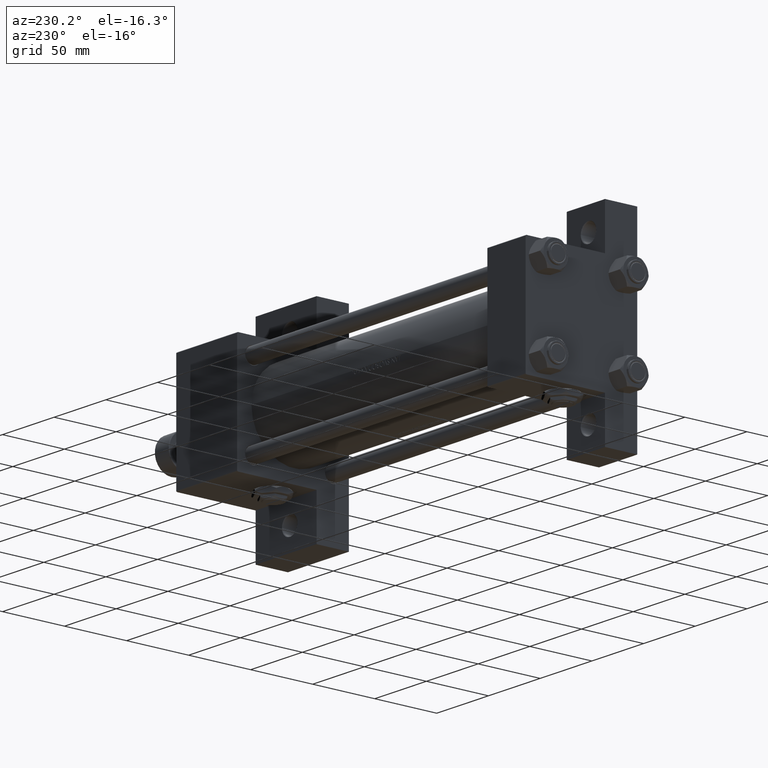
[diagram: clean part render]
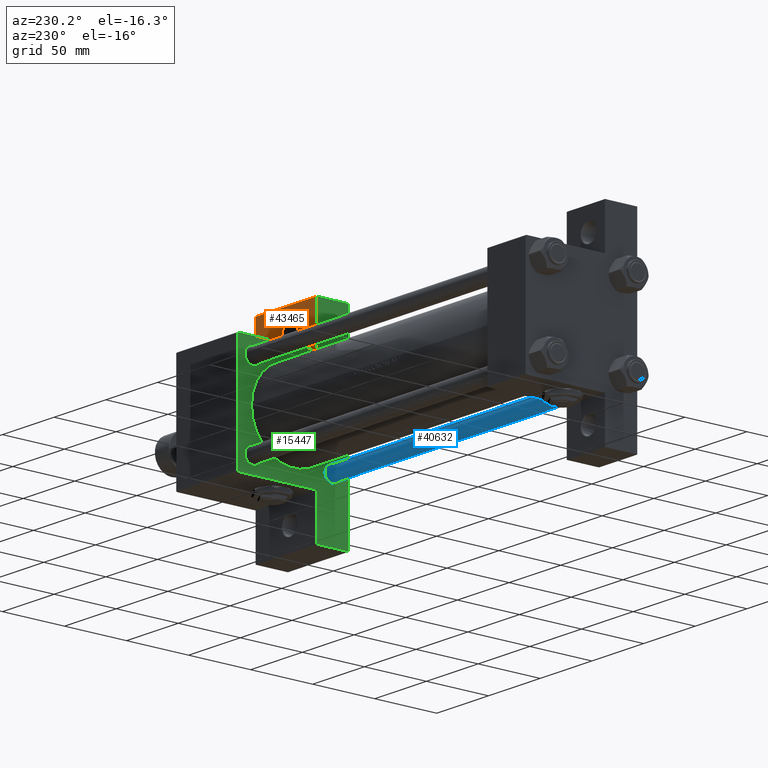
[diagram: same view with three faces highlighted in distinct colors, each labeled with its STEP entity id]
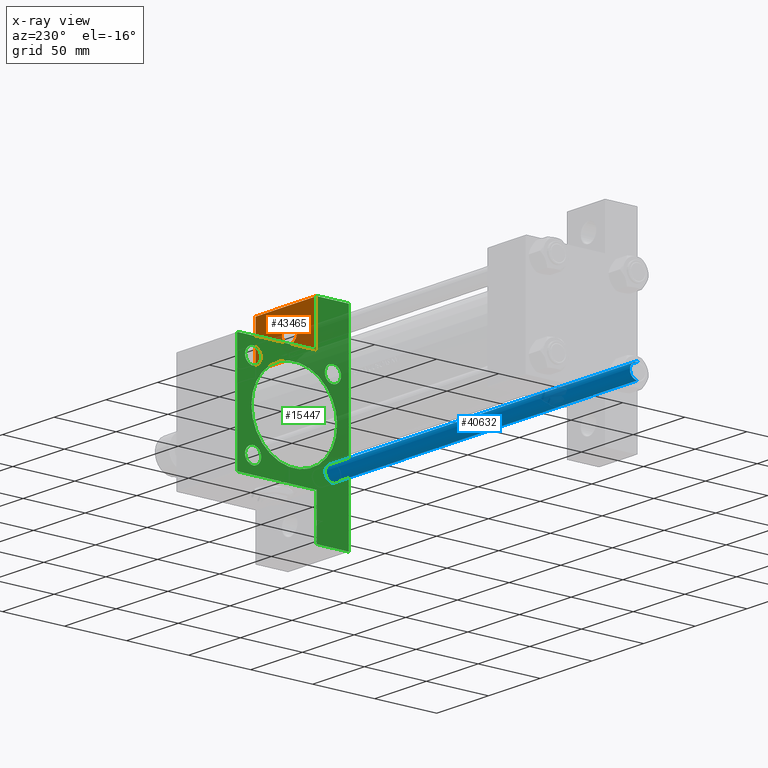
[diagram: x-ray of the same camera — body ghosted, the three highlighted faces saturated]
A machine part, auxiliary view with three faces highlighted in distinct colors.
The next image is the same camera in x-ray (body ghosted, the three faces saturated) — at least one of them is partly hidden behind the body in this view.
Their STEP definitions:

[orange] entity #43465 — the highlighted planar face has unit normal (0, -1, 0).
#242 = ORIENTED_EDGE ( 'NONE', *, *, #17396, .F. ) ;
#1238 = DIRECTION ( 'NONE',  ( -1.000000000000000000, 4.704334850106595794E-16, -0.000000000000000000 ) ) ;
#2348 = VECTOR ( 'NONE', #14859, 1000.000000000000000 ) ;
#3021 = CIRCLE ( 'NONE', #17595, 7.499499999999992284 ) ;
#3082 = CIRCLE ( 'NONE', #37907, 7.499499999999992284 ) ;
#3335 = LINE ( 'NONE', #3585, #25775 ) ;
#3585 = CARTESIAN_POINT ( 'NONE',  ( 278.9999999999999432, -80.00000000000001421, -19.00000000000000000 ) ) ;
#4036 = DIRECTION ( 'NONE',  ( -1.000000000000000000, 0.000000000000000000, 0.000000000000000000 ) ) ;
#5080 = VERTEX_POINT ( 'NONE', #6780 ) ;
#5293 = CARTESIAN_POINT ( 'NONE',  ( 337.9999999999999432, -80.00000000000004263, -19.00000000000000000 ) ) ;
#6780 = CARTESIAN_POINT ( 'NONE',  ( 278.9999999999999432, -80.00000000000001421, -19.00000000000000000 ) ) ;
#7097 = CARTESIAN_POINT ( 'NONE',  ( 337.9999999999999432, -80.00000000000004263, -19.00000000000000000 ) ) ;
#7888 = AXIS2_PLACEMENT_3D ( 'NONE', #49861, #30873, #30377 ) ;
#9575 = EDGE_CURVE ( 'NONE', #5080, #49798, #3335, .T. ) ;
#10508 = CARTESIAN_POINT ( 'NONE',  ( 312.4994999999999550, -62.00000000000000000, -19.00000000000000000 ) ) ;
#11410 = EDGE_CURVE ( 'NONE', #46560, #15651, #3082, .T. ) ;
#14859 = DIRECTION ( 'NONE',  ( 1.000000000000000000, 0.000000000000000000, 0.000000000000000000 ) ) ;
#15113 = LINE ( 'NONE', #49053, #2348 ) ;
#15651 = VERTEX_POINT ( 'NONE', #22961 ) ;
#17229 = LINE ( 'NONE', #5293, #45596 ) ;
#17396 = EDGE_CURVE ( 'NONE', #28220, #5080, #24115, .T. ) ;
#17595 = AXIS2_PLACEMENT_3D ( 'NONE', #22341, #38788, #4036 ) ;
#20049 = ORIENTED_EDGE ( 'NONE', *, *, #30858, .F. ) ;
#21168 = CARTESIAN_POINT ( 'NONE',  ( 337.9999999999999432, -44.99999999999999289, -18.99999999999997513 ) ) ;
#22341 = CARTESIAN_POINT ( 'NONE',  ( 304.9999999999999432, -62.00000000000000000, -19.00000000000000000 ) ) ;
#22961 = CARTESIAN_POINT ( 'NONE',  ( 297.5004999999999313, -62.00000000000000000, -19.00000000000000000 ) ) ;
#24047 = DIRECTION ( 'NONE',  ( -1.000000000000000000, 0.000000000000000000, 0.000000000000000000 ) ) ;
#24115 = LINE ( 'NONE', #47128, #34407 ) ;
#25100 = DIRECTION ( 'NONE',  ( -0.000000000000000000, -1.000000000000000000, -0.000000000000000000 ) ) ;
#25775 = VECTOR ( 'NONE', #30487, 1000.000000000000000 ) ;
#28079 = DIRECTION ( 'NONE',  ( 0.000000000000000000, 0.000000000000000000, -1.000000000000000000 ) ) ;
#28220 = VERTEX_POINT ( 'NONE', #7097 ) ;
#30377 = DIRECTION ( 'NONE',  ( -1.000000000000000000, 0.000000000000000000, -0.000000000000000000 ) ) ;
#30487 = DIRECTION ( 'NONE',  ( 0.000000000000000000, 1.000000000000000000, 0.000000000000000000 ) ) ;
#30858 = EDGE_CURVE ( 'NONE', #40040, #28220, #17229, .T. ) ;
#30873 = DIRECTION ( 'NONE',  ( 0.000000000000000000, 0.000000000000000000, -1.000000000000000000 ) ) ;
#31475 = ORIENTED_EDGE ( 'NONE', *, *, #9575, .F. ) ;
#32440 = FACE_OUTER_BOUND ( 'NONE', #44095, .T. ) ;
#34407 = VECTOR ( 'NONE', #1238, 1000.000000000000000 ) ;
#35169 = CARTESIAN_POINT ( 'NONE',  ( 304.9999999999999432, -62.00000000000000000, -19.00000000000000000 ) ) ;
#35365 = ORIENTED_EDGE ( 'NONE', *, *, #44762, .F. ) ;
#37463 = FACE_BOUND ( 'NONE', #45817, .T. ) ;
#37592 = ORIENTED_EDGE ( 'NONE', *, *, #43273, .T. ) ;
#37907 = AXIS2_PLACEMENT_3D ( 'NONE', #35169, #28079, #24047 ) ;
#38788 = DIRECTION ( 'NONE',  ( 0.000000000000000000, 0.000000000000000000, -1.000000000000000000 ) ) ;
#39217 = CARTESIAN_POINT ( 'NONE',  ( 278.9999999999999432, -45.00000000000000000, -19.00000000000000000 ) ) ;
#40040 = VERTEX_POINT ( 'NONE', #21168 ) ;
#43273 = EDGE_CURVE ( 'NONE', #15651, #46560, #3021, .T. ) ;
#43465 = ADVANCED_FACE ( 'NONE', ( #37463, #32440 ), #47872, .F. ) ;
#44095 = EDGE_LOOP ( 'NONE', ( #20049, #35365, #31475, #242 ) ) ;
#44762 = EDGE_CURVE ( 'NONE', #49798, #40040, #15113, .T. ) ;
#45596 = VECTOR ( 'NONE', #25100, 1000.000000000000000 ) ;
#45817 = EDGE_LOOP ( 'NONE', ( #48974, #37592 ) ) ;
#46560 = VERTEX_POINT ( 'NONE', #10508 ) ;
#47128 = CARTESIAN_POINT ( 'NONE',  ( 278.9999999999999432, -80.00000000000001421, -19.00000000000000000 ) ) ;
#47872 = PLANE ( 'NONE',  #7888 ) ;
#48974 = ORIENTED_EDGE ( 'NONE', *, *, #11410, .T. ) ;
#49053 = CARTESIAN_POINT ( 'NONE',  ( 278.9999999999999432, -45.00000000000000000, -19.00000000000000000 ) ) ;
#49798 = VERTEX_POINT ( 'NONE', #39217 ) ;
#49861 = CARTESIAN_POINT ( 'NONE',  ( 0.000000000000000000, 0.000000000000000000, -19.00000000000000000 ) ) ;

[blue] entity #40632 — the highlighted cylindrical surface (edge-blend (fillet) strip) has radius 6 mm, axis along (-1, 0, 0).
#502 = AXIS2_PLACEMENT_3D ( 'NONE', #16013, #20815, #28175 ) ;
#1022 = CYLINDRICAL_SURFACE ( 'NONE', #502, 6.000000000000000888 ) ;
#4171 = EDGE_LOOP ( 'NONE', ( #36205, #17264, #22654, #22579 ) ) ;
#5885 = CARTESIAN_POINT ( 'NONE',  ( 6.000000000000000888, 7.347880794884120722E-16, 307.4999999999999432 ) ) ;
#6802 = CARTESIAN_POINT ( 'NONE',  ( -6.000000000000000888, 0.000000000000000000, 0.5000000000000559552 ) ) ;
#7782 = CARTESIAN_POINT ( 'NONE',  ( -6.000000000000000888, 0.000000000000000000, 307.4999999999999432 ) ) ;
#8499 = CARTESIAN_POINT ( 'NONE',  ( 6.000000000000000888, 7.347880794884120722E-16, 0.5000000000000559552 ) ) ;
#9948 = CARTESIAN_POINT ( 'NONE',  ( 0.000000000000000000, 0.000000000000000000, 307.4999999999999432 ) ) ;
#10581 = CIRCLE ( 'NONE', #13818, 6.000000000000000888 ) ;
#13378 = DIRECTION ( 'NONE',  ( 1.000000000000000000, 0.000000000000000000, 0.000000000000000000 ) ) ;
#13818 = AXIS2_PLACEMENT_3D ( 'NONE', #24569, #24080, #13378 ) ;
#16013 = CARTESIAN_POINT ( 'NONE',  ( 0.000000000000000000, 0.000000000000000000, 308.0000000000000000 ) ) ;
#17264 = ORIENTED_EDGE ( 'NONE', *, *, #21602, .T. ) ;
#17444 = LINE ( 'NONE', #33148, #24475 ) ;
#20815 = DIRECTION ( 'NONE',  ( -0.000000000000000000, -0.000000000000000000, -1.000000000000000000 ) ) ;
#21602 = EDGE_CURVE ( 'NONE', #35752, #36715, #29906, .T. ) ;
#21620 = DIRECTION ( 'NONE',  ( 1.000000000000000000, 0.000000000000000000, 0.000000000000000000 ) ) ;
#21694 = CARTESIAN_POINT ( 'NONE',  ( -6.000000000000000888, 0.000000000000000000, 308.0000000000000000 ) ) ;
#22579 = ORIENTED_EDGE ( 'NONE', *, *, #48730, .T. ) ;
#22654 = ORIENTED_EDGE ( 'NONE', *, *, #27234, .T. ) ;
#24080 = DIRECTION ( 'NONE',  ( -0.000000000000000000, -0.000000000000000000, 1.000000000000000000 ) ) ;
#24475 = VECTOR ( 'NONE', #48588, 1000.000000000000000 ) ;
#24569 = CARTESIAN_POINT ( 'NONE',  ( 0.000000000000000000, 0.000000000000000000, 0.5000000000000559552 ) ) ;
#24782 = VERTEX_POINT ( 'NONE', #8499 ) ;
#25202 = VERTEX_POINT ( 'NONE', #6802 ) ;
#26872 = EDGE_CURVE ( 'NONE', #35752, #24782, #17444, .T. ) ;
#27234 = EDGE_CURVE ( 'NONE', #36715, #25202, #37380, .T. ) ;
#28175 = DIRECTION ( 'NONE',  ( -1.000000000000000000, 0.000000000000000000, 0.000000000000000000 ) ) ;
#29287 = DIRECTION ( 'NONE',  ( -0.000000000000000000, -0.000000000000000000, -1.000000000000000000 ) ) ;
#29460 = DIRECTION ( 'NONE',  ( 0.000000000000000000, 0.000000000000000000, -1.000000000000000000 ) ) ;
#29906 = CIRCLE ( 'NONE', #32342, 6.000000000000000888 ) ;
#32342 = AXIS2_PLACEMENT_3D ( 'NONE', #9948, #29460, #21620 ) ;
#33148 = CARTESIAN_POINT ( 'NONE',  ( 6.000000000000000888, 7.347880794884120722E-16, 308.0000000000000000 ) ) ;
#35752 = VERTEX_POINT ( 'NONE', #5885 ) ;
#36205 = ORIENTED_EDGE ( 'NONE', *, *, #26872, .F. ) ;
#36715 = VERTEX_POINT ( 'NONE', #7782 ) ;
#37380 = LINE ( 'NONE', #21694, #39874 ) ;
#39874 = VECTOR ( 'NONE', #29287, 1000.000000000000000 ) ;
#40632 = ADVANCED_FACE ( 'NONE', ( #43861 ), #1022, .T. ) ;
#43861 = FACE_OUTER_BOUND ( 'NONE', #4171, .T. ) ;
#48588 = DIRECTION ( 'NONE',  ( -0.000000000000000000, -0.000000000000000000, -1.000000000000000000 ) ) ;
#48730 = EDGE_CURVE ( 'NONE', #25202, #24782, #10581, .T. ) ;

[green] entity #15447 — the highlighted planar face has unit normal (-1, 0, -0).
#18 = CARTESIAN_POINT ( 'NONE',  ( 278.9999999999999432, 32.14999999999999147, 32.15000000000000568 ) ) ;
#31 = EDGE_CURVE ( 'NONE', #37149, #39173, #8538, .T. ) ;
#59 = ORIENTED_EDGE ( 'NONE', *, *, #9575, .T. ) ;
#82 = EDGE_LOOP ( 'NONE', ( #49854, #7340, #7660, #45256, #6044, #5572, #27597, #59, #983, #11728 ) ) ;
#206 = LINE ( 'NONE', #7828, #16746 ) ;
#420 = EDGE_LOOP ( 'NONE', ( #15382, #12728 ) ) ;
#516 = EDGE_CURVE ( 'NONE', #24893, #8527, #36863, .T. ) ;
#921 = EDGE_LOOP ( 'NONE', ( #42634, #7470 ) ) ;
#983 = ORIENTED_EDGE ( 'NONE', *, *, #41689, .F. ) ;
#1319 = CARTESIAN_POINT ( 'NONE',  ( 278.9999999999999432, -32.14999999999997726, 38.65000000000002700 ) ) ;
#2380 = AXIS2_PLACEMENT_3D ( 'NONE', #5114, #24678, #44158 ) ;
#3335 = LINE ( 'NONE', #3585, #25775 ) ;
#3475 = CARTESIAN_POINT ( 'NONE',  ( 278.9999999999999432, 32.14999999999999147, 38.65000000000001279 ) ) ;
#3585 = CARTESIAN_POINT ( 'NONE',  ( 278.9999999999999432, -80.00000000000001421, -19.00000000000000000 ) ) ;
#3979 = CIRCLE ( 'NONE', #2380, 6.500000000000012434 ) ;
#4102 = DIRECTION ( 'NONE',  ( 0.000000000000000000, 0.000000000000000000, -1.000000000000000000 ) ) ;
#4130 = VERTEX_POINT ( 'NONE', #48355 ) ;
#4577 = CARTESIAN_POINT ( 'NONE',  ( 278.9999999999999432, -45.00000000000000000, 44.49999999999998579 ) ) ;
#4932 = DIRECTION ( 'NONE',  ( 0.000000000000000000, 0.000000000000000000, -1.000000000000000000 ) ) ;
#5018 = EDGE_CURVE ( 'NONE', #47265, #4130, #15054, .T. ) ;
#5080 = VERTEX_POINT ( 'NONE', #6780 ) ;
#5114 = CARTESIAN_POINT ( 'NONE',  ( 278.9999999999999432, -32.14999999999997726, -32.15000000000001279 ) ) ;
#5572 = ORIENTED_EDGE ( 'NONE', *, *, #46227, .T. ) ;
#6044 = ORIENTED_EDGE ( 'NONE', *, *, #18786, .T. ) ;
#6131 = CARTESIAN_POINT ( 'NONE',  ( 278.9999999999999432, 45.00000000000001421, 44.49999999999994316 ) ) ;
#6512 = VECTOR ( 'NONE', #27104, 1000.000000000000000 ) ;
#6751 = CARTESIAN_POINT ( 'NONE',  ( 278.9999999999999432, 45.00000000000001421, -45.00000000000000000 ) ) ;
#6780 = CARTESIAN_POINT ( 'NONE',  ( 278.9999999999999432, -80.00000000000001421, -19.00000000000000000 ) ) ;
#7135 = EDGE_CURVE ( 'NONE', #49877, #34776, #22908, .T. ) ;
#7241 = VECTOR ( 'NONE', #4932, 1000.000000000000000 ) ;
#7289 = CARTESIAN_POINT ( 'NONE',  ( 278.9999999999999432, 32.14999999999999147, -32.15000000000000568 ) ) ;
#7312 = AXIS2_PLACEMENT_3D ( 'NONE', #42898, #12489, #4102 ) ;
#7340 = ORIENTED_EDGE ( 'NONE', *, *, #7135, .T. ) ;
#7470 = ORIENTED_EDGE ( 'NONE', *, *, #516, .T. ) ;
#7660 = ORIENTED_EDGE ( 'NONE', *, *, #42517, .T. ) ;
#7828 = CARTESIAN_POINT ( 'NONE',  ( 278.9999999999999432, -45.00000000000000000, 44.99999999999998579 ) ) ;
#8020 = VECTOR ( 'NONE', #38806, 1000.000000000000000 ) ;
#8132 = VERTEX_POINT ( 'NONE', #17536 ) ;
#8527 = VERTEX_POINT ( 'NONE', #3475 ) ;
#8538 = CIRCLE ( 'NONE', #36052, 34.49999999999999289 ) ;
#9338 = AXIS2_PLACEMENT_3D ( 'NONE', #18, #35771, #15764 ) ;
#9575 = EDGE_CURVE ( 'NONE', #5080, #49798, #3335, .T. ) ;
#9594 = ORIENTED_EDGE ( 'NONE', *, *, #15107, .T. ) ;
#10337 = FACE_BOUND ( 'NONE', #420, .T. ) ;
#10385 = EDGE_CURVE ( 'NONE', #32634, #34357, #28197, .T. ) ;
#10845 = CARTESIAN_POINT ( 'NONE',  ( 278.9999999999999432, 0.000000000000000000, 0.000000000000000000 ) ) ;
#10858 = DIRECTION ( 'NONE',  ( 0.000000000000000000, 0.000000000000000000, 1.000000000000000000 ) ) ;
#10992 = ORIENTED_EDGE ( 'NONE', *, *, #22974, .T. ) ;
#11398 = DIRECTION ( 'NONE',  ( 0.000000000000000000, 7.709882115452478166E-17, -1.000000000000000000 ) ) ;
#11444 = CARTESIAN_POINT ( 'NONE',  ( 278.9999999999999432, 45.00000000000001421, 45.00000000000000000 ) ) ;
#11482 = CARTESIAN_POINT ( 'NONE',  ( 278.9999999999999432, 44.74999999999997158, 44.74999999999997158 ) ) ;
#11728 = ORIENTED_EDGE ( 'NONE', *, *, #28715, .T. ) ;
#11984 = AXIS2_PLACEMENT_3D ( 'NONE', #34155, #30863, #45298 ) ;
#12157 = AXIS2_PLACEMENT_3D ( 'NONE', #44298, #24075, #40260 ) ;
#12489 = DIRECTION ( 'NONE',  ( 1.000000000000000000, 0.000000000000000000, 0.000000000000000000 ) ) ;
#12719 = CARTESIAN_POINT ( 'NONE',  ( 278.9999999999999432, -32.14999999999997726, 32.15000000000001279 ) ) ;
#12721 = CIRCLE ( 'NONE', #40261, 6.499999999999999112 ) ;
#12728 = ORIENTED_EDGE ( 'NONE', *, *, #19756, .T. ) ;
#13640 = FACE_BOUND ( 'NONE', #17897, .T. ) ;
#13645 = DIRECTION ( 'NONE',  ( 0.000000000000000000, 0.000000000000000000, 1.000000000000000000 ) ) ;
#13895 = DIRECTION ( 'NONE',  ( 1.000000000000000000, 0.000000000000000000, 0.000000000000000000 ) ) ;
#14128 = FACE_BOUND ( 'NONE', #921, .T. ) ;
#14916 = DIRECTION ( 'NONE',  ( 0.000000000000000000, 0.000000000000000000, 1.000000000000000000 ) ) ;
#15054 = CIRCLE ( 'NONE', #42664, 6.500000000000012434 ) ;
#15107 = EDGE_CURVE ( 'NONE', #34357, #32634, #38322, .T. ) ;
#15382 = ORIENTED_EDGE ( 'NONE', *, *, #31088, .T. ) ;
#15447 = ADVANCED_FACE ( 'NONE', ( #33648, #14128, #10337, #41514, #13640, #22258 ), #44552, .T. ) ;
#15456 = VERTEX_POINT ( 'NONE', #49337 ) ;
#15764 = DIRECTION ( 'NONE',  ( 0.000000000000000000, 0.000000000000000000, 1.000000000000000000 ) ) ;
#16172 = VECTOR ( 'NONE', #42617, 1000.000000000000000 ) ;
#16746 = VECTOR ( 'NONE', #11398, 1000.000000000000000 ) ;
#16808 = EDGE_LOOP ( 'NONE', ( #19265, #17976 ) ) ;
#17208 = DIRECTION ( 'NONE',  ( 1.000000000000000000, 0.000000000000000000, 0.000000000000000000 ) ) ;
#17536 = CARTESIAN_POINT ( 'NONE',  ( 278.9999999999999432, -44.49999999999997158, 44.99999999999998579 ) ) ;
#17693 = DIRECTION ( 'NONE',  ( -0.000000000000000000, 0.000000000000000000, 1.000000000000000000 ) ) ;
#17897 = EDGE_LOOP ( 'NONE', ( #10992, #33345 ) ) ;
#17976 = ORIENTED_EDGE ( 'NONE', *, *, #18312, .T. ) ;
#18312 = EDGE_CURVE ( 'NONE', #4130, #47265, #3979, .T. ) ;
#18545 = EDGE_LOOP ( 'NONE', ( #24486, #9594 ) ) ;
#18552 = LINE ( 'NONE', #46164, #16172 ) ;
#18786 = EDGE_CURVE ( 'NONE', #28675, #26860, #35125, .T. ) ;
#19265 = ORIENTED_EDGE ( 'NONE', *, *, #5018, .T. ) ;
#19756 = EDGE_CURVE ( 'NONE', #33623, #26078, #34003, .T. ) ;
#19798 = LINE ( 'NONE', #11444, #8020 ) ;
#20328 = DIRECTION ( 'NONE',  ( 0.000000000000000000, 0.000000000000000000, 1.000000000000000000 ) ) ;
#20519 = CARTESIAN_POINT ( 'NONE',  ( 278.9999999999999432, 45.00000000000001421, 45.00000000000000000 ) ) ;
#20769 = CARTESIAN_POINT ( 'NONE',  ( 278.9999999999999432, 32.14999999999999147, 32.15000000000000568 ) ) ;
#20791 = EDGE_CURVE ( 'NONE', #15456, #28675, #27354, .T. ) ;
#21662 = EDGE_CURVE ( 'NONE', #5080, #24292, #18552, .T. ) ;
#21725 = VERTEX_POINT ( 'NONE', #4577 ) ;
#22258 = FACE_OUTER_BOUND ( 'NONE', #82, .T. ) ;
#22908 = LINE ( 'NONE', #11482, #34584 ) ;
#22974 = EDGE_CURVE ( 'NONE', #39173, #37149, #37204, .T. ) ;
#22982 = AXIS2_PLACEMENT_3D ( 'NONE', #7289, #49616, #14916 ) ;
#24075 = DIRECTION ( 'NONE',  ( 1.000000000000000000, 0.000000000000000000, 0.000000000000000000 ) ) ;
#24292 = VERTEX_POINT ( 'NONE', #40312 ) ;
#24344 = LINE ( 'NONE', #20519, #26481 ) ;
#24486 = ORIENTED_EDGE ( 'NONE', *, *, #10385, .T. ) ;
#24678 = DIRECTION ( 'NONE',  ( 1.000000000000000000, 0.000000000000000000, 0.000000000000000000 ) ) ;
#24893 = VERTEX_POINT ( 'NONE', #43476 ) ;
#24993 = CARTESIAN_POINT ( 'NONE',  ( 278.9999999999999432, 32.14999999999999147, -38.65000000000001990 ) ) ;
#25775 = VECTOR ( 'NONE', #30487, 1000.000000000000000 ) ;
#25975 = CARTESIAN_POINT ( 'NONE',  ( 278.9999999999999432, 0.000000000000000000, 33.49999999999998579 ) ) ;
#26051 = LINE ( 'NONE', #6751, #37234 ) ;
#26078 = VERTEX_POINT ( 'NONE', #44785 ) ;
#26481 = VECTOR ( 'NONE', #35981, 1000.000000000000000 ) ;
#26860 = VERTEX_POINT ( 'NONE', #27622 ) ;
#27104 = DIRECTION ( 'NONE',  ( -0.000000000000000000, 1.000000000000000000, -0.000000000000000000 ) ) ;
#27309 = CARTESIAN_POINT ( 'NONE',  ( 278.9999999999999432, -32.14999999999997726, 25.64999999999999858 ) ) ;
#27354 = LINE ( 'NONE', #35453, #6512 ) ;
#27597 = ORIENTED_EDGE ( 'NONE', *, *, #21662, .F. ) ;
#27622 = CARTESIAN_POINT ( 'NONE',  ( 278.9999999999999432, 79.99999999999995737, -45.00000000000000000 ) ) ;
#27830 = CIRCLE ( 'NONE', #22982, 6.500000000000012434 ) ;
#28197 = CIRCLE ( 'NONE', #11984, 6.500000000000012434 ) ;
#28207 = DIRECTION ( 'NONE',  ( -0.000000000000000000, 0.7071067811865474617, 0.7071067811865474617 ) ) ;
#28232 = DIRECTION ( 'NONE',  ( 1.000000000000000000, 0.000000000000000000, 0.000000000000000000 ) ) ;
#28675 = VERTEX_POINT ( 'NONE', #34551 ) ;
#28715 = EDGE_CURVE ( 'NONE', #21725, #8132, #42408, .T. ) ;
#29034 = CARTESIAN_POINT ( 'NONE',  ( 278.9999999999999432, -32.14999999999997726, -25.64999999999999858 ) ) ;
#29596 = DIRECTION ( 'NONE',  ( -1.000000000000000000, 0.000000000000000000, -0.000000000000000000 ) ) ;
#30487 = DIRECTION ( 'NONE',  ( 0.000000000000000000, 1.000000000000000000, 0.000000000000000000 ) ) ;
#30863 = DIRECTION ( 'NONE',  ( 1.000000000000000000, 0.000000000000000000, 0.000000000000000000 ) ) ;
#31088 = EDGE_CURVE ( 'NONE', #26078, #33623, #27830, .T. ) ;
#31799 = VECTOR ( 'NONE', #28207, 1000.000000000000114 ) ;
#32006 = CARTESIAN_POINT ( 'NONE',  ( 278.9999999999999432, -44.74999999999999289, 44.74999999999999289 ) ) ;
#32031 = DIRECTION ( 'NONE',  ( 0.000000000000000000, 0.000000000000000000, -1.000000000000000000 ) ) ;
#32103 = CARTESIAN_POINT ( 'NONE',  ( 278.9999999999999432, 44.49999999999995737, 45.00000000000000000 ) ) ;
#32634 = VERTEX_POINT ( 'NONE', #1319 ) ;
#33345 = ORIENTED_EDGE ( 'NONE', *, *, #31, .T. ) ;
#33414 = CARTESIAN_POINT ( 'NONE',  ( 278.9999999999999432, -32.14999999999997726, -32.15000000000001279 ) ) ;
#33623 = VERTEX_POINT ( 'NONE', #24993 ) ;
#33648 = FACE_BOUND ( 'NONE', #18545, .T. ) ;
#34003 = CIRCLE ( 'NONE', #12157, 6.500000000000012434 ) ;
#34135 = DIRECTION ( 'NONE',  ( 0.000000000000000000, -1.000000000000000000, 0.000000000000000000 ) ) ;
#34155 = CARTESIAN_POINT ( 'NONE',  ( 278.9999999999999432, -32.14999999999997726, 32.15000000000001279 ) ) ;
#34304 = AXIS2_PLACEMENT_3D ( 'NONE', #10845, #29596, #17693 ) ;
#34357 = VERTEX_POINT ( 'NONE', #27309 ) ;
#34551 = CARTESIAN_POINT ( 'NONE',  ( 278.9999999999999432, 79.99999999999995737, -19.00000000000000000 ) ) ;
#34584 = VECTOR ( 'NONE', #38848, 1000.000000000000114 ) ;
#34776 = VERTEX_POINT ( 'NONE', #6131 ) ;
#35125 = LINE ( 'NONE', #39444, #7241 ) ;
#35453 = CARTESIAN_POINT ( 'NONE',  ( 278.9999999999999432, 79.99999999999995737, -19.00000000000000000 ) ) ;
#35771 = DIRECTION ( 'NONE',  ( 1.000000000000000000, 0.000000000000000000, 0.000000000000000000 ) ) ;
#35981 = DIRECTION ( 'NONE',  ( 0.000000000000000000, 0.000000000000000000, -1.000000000000000000 ) ) ;
#36052 = AXIS2_PLACEMENT_3D ( 'NONE', #38882, #28232, #32031 ) ;
#36590 = CARTESIAN_POINT ( 'NONE',  ( 278.9999999999999432, 4.225031457058367344E-15, -35.50000000000000711 ) ) ;
#36863 = CIRCLE ( 'NONE', #9338, 6.499999999999999112 ) ;
#37149 = VERTEX_POINT ( 'NONE', #36590 ) ;
#37204 = CIRCLE ( 'NONE', #7312, 34.49999999999999289 ) ;
#37234 = VECTOR ( 'NONE', #34135, 1000.000000000000000 ) ;
#38322 = CIRCLE ( 'NONE', #44781, 6.500000000000012434 ) ;
#38806 = DIRECTION ( 'NONE',  ( 0.000000000000000000, -1.000000000000000000, -1.541976423090495140E-16 ) ) ;
#38848 = DIRECTION ( 'NONE',  ( 0.000000000000000000, 0.7071067811865474617, -0.7071067811865474617 ) ) ;
#38882 = CARTESIAN_POINT ( 'NONE',  ( 278.9999999999999432, 0.000000000000000000, -1.000000000000007772 ) ) ;
#39173 = VERTEX_POINT ( 'NONE', #25975 ) ;
#39217 = CARTESIAN_POINT ( 'NONE',  ( 278.9999999999999432, -45.00000000000000000, -19.00000000000000000 ) ) ;
#39444 = CARTESIAN_POINT ( 'NONE',  ( 278.9999999999999432, 79.99999999999995737, -19.00000000000000000 ) ) ;
#40260 = DIRECTION ( 'NONE',  ( 0.000000000000000000, 0.000000000000000000, 1.000000000000000000 ) ) ;
#40261 = AXIS2_PLACEMENT_3D ( 'NONE', #20769, #17208, #13645 ) ;
#40312 = CARTESIAN_POINT ( 'NONE',  ( 278.9999999999999432, -80.00000000000001421, -45.00000000000000000 ) ) ;
#41514 = FACE_BOUND ( 'NONE', #16808, .T. ) ;
#41689 = EDGE_CURVE ( 'NONE', #21725, #49798, #206, .T. ) ;
#42408 = LINE ( 'NONE', #32006, #31799 ) ;
#42517 = EDGE_CURVE ( 'NONE', #34776, #15456, #24344, .T. ) ;
#42604 = EDGE_CURVE ( 'NONE', #8527, #24893, #12721, .T. ) ;
#42617 = DIRECTION ( 'NONE',  ( 0.000000000000000000, 0.000000000000000000, -1.000000000000000000 ) ) ;
#42634 = ORIENTED_EDGE ( 'NONE', *, *, #42604, .T. ) ;
#42664 = AXIS2_PLACEMENT_3D ( 'NONE', #33414, #13895, #10858 ) ;
#42898 = CARTESIAN_POINT ( 'NONE',  ( 278.9999999999999432, 0.000000000000000000, -1.000000000000007772 ) ) ;
#43383 = DIRECTION ( 'NONE',  ( 1.000000000000000000, 0.000000000000000000, 0.000000000000000000 ) ) ;
#43476 = CARTESIAN_POINT ( 'NONE',  ( 278.9999999999999432, 32.14999999999999147, 25.65000000000000213 ) ) ;
#44158 = DIRECTION ( 'NONE',  ( 0.000000000000000000, 0.000000000000000000, 1.000000000000000000 ) ) ;
#44298 = CARTESIAN_POINT ( 'NONE',  ( 278.9999999999999432, 32.14999999999999147, -32.15000000000000568 ) ) ;
#44552 = PLANE ( 'NONE',  #34304 ) ;
#44781 = AXIS2_PLACEMENT_3D ( 'NONE', #12719, #43383, #20328 ) ;
#44785 = CARTESIAN_POINT ( 'NONE',  ( 278.9999999999999432, 32.14999999999999147, -25.64999999999999147 ) ) ;
#45022 = EDGE_CURVE ( 'NONE', #49877, #8132, #19798, .T. ) ;
#45256 = ORIENTED_EDGE ( 'NONE', *, *, #20791, .T. ) ;
#45298 = DIRECTION ( 'NONE',  ( 0.000000000000000000, 0.000000000000000000, 1.000000000000000000 ) ) ;
#46164 = CARTESIAN_POINT ( 'NONE',  ( 278.9999999999999432, -80.00000000000001421, -19.00000000000000000 ) ) ;
#46227 = EDGE_CURVE ( 'NONE', #26860, #24292, #26051, .T. ) ;
#47265 = VERTEX_POINT ( 'NONE', #29034 ) ;
#48355 = CARTESIAN_POINT ( 'NONE',  ( 278.9999999999999432, -32.14999999999997726, -38.65000000000002700 ) ) ;
#49337 = CARTESIAN_POINT ( 'NONE',  ( 278.9999999999999432, 45.00000000000001421, -18.99999999999997513 ) ) ;
#49616 = DIRECTION ( 'NONE',  ( 1.000000000000000000, 0.000000000000000000, 0.000000000000000000 ) ) ;
#49798 = VERTEX_POINT ( 'NONE', #39217 ) ;
#49854 = ORIENTED_EDGE ( 'NONE', *, *, #45022, .F. ) ;
#49877 = VERTEX_POINT ( 'NONE', #32103 ) ;